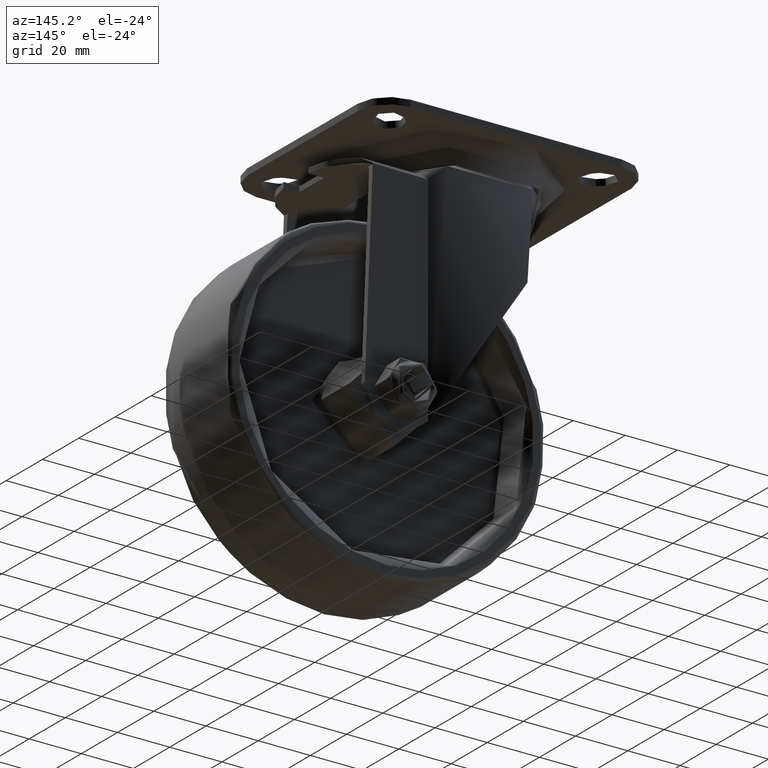
[diagram: clean part render]
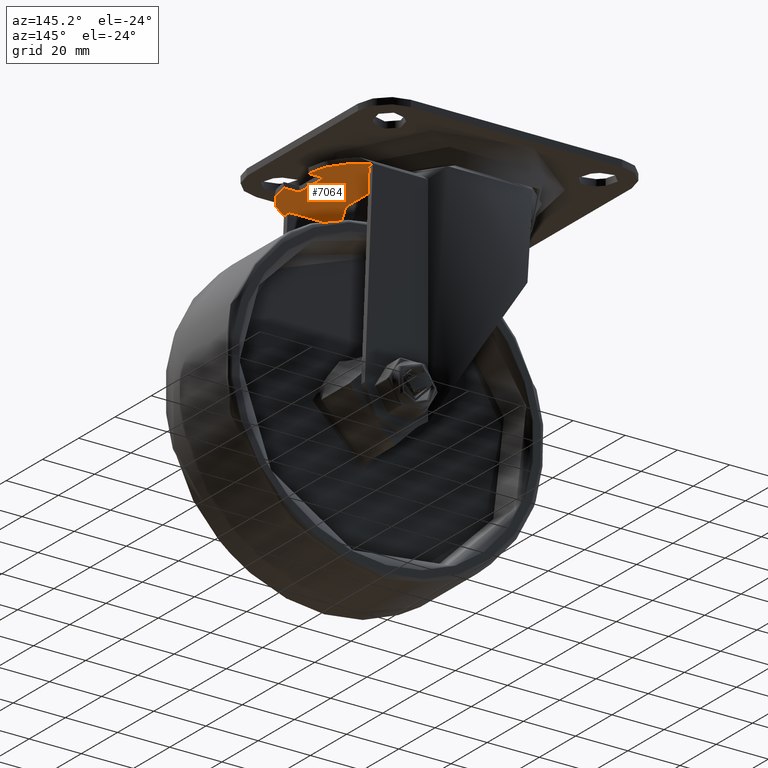
[diagram: same view with one face highlighted and labeled with its STEP entity id]
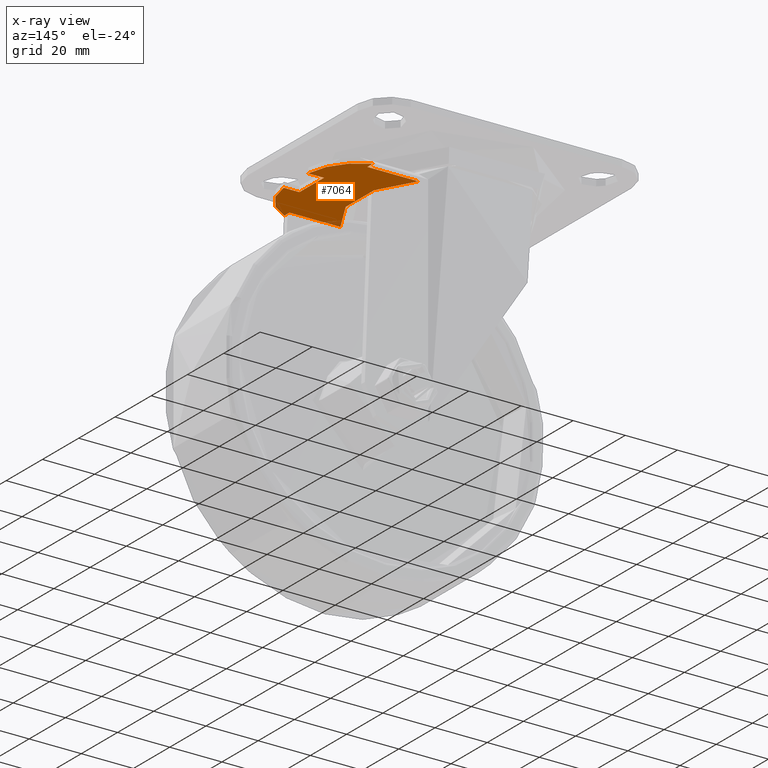
[diagram: x-ray of the same camera — body ghosted, the highlighted face saturated]
A machine part, auxiliary view. The second image highlights one B-rep face of the part: STEP entity #7064.
The next image is the same camera in x-ray: the body ghosted, the highlighted face saturated — about 1% of this face is hidden behind the body in this view.
In plain terms, the highlighted planar face has unit normal (0, 0, 1).
Its self-contained STEP definition (entity closure, byte-faithful):
#564=PLANE('',#7691);
#828=FACE_OUTER_BOUND('',#1275,.T.);
#1275=EDGE_LOOP('',(#5256,#5257,#5258,#5259,#5260,#5261,#5262,#5263,#5264,
#5265));
#1672=LINE('',#10458,#2215);
#1684=LINE('',#10523,#2227);
#1685=LINE('',#10526,#2228);
#1687=LINE('',#10529,#2230);
#1699=LINE('',#10742,#2242);
#1702=LINE('',#10842,#2245);
#1768=LINE('',#11309,#2311);
#2215=VECTOR('',#8476,10.);
#2227=VECTOR('',#8516,10.);
#2228=VECTOR('',#8519,10.);
#2230=VECTOR('',#8523,10.);
#2242=VECTOR('',#8589,1000.);
#2245=VECTOR('',#8596,1000.);
#2311=VECTOR('',#8732,10.);
#2748=CIRCLE('',#7608,20.6922235914258);
#2752=CIRCLE('',#7617,20.6922235914258);
#2767=CIRCLE('',#7643,31.5);
#3070=VERTEX_POINT('',#10455);
#3071=VERTEX_POINT('',#10457);
#3076=VERTEX_POINT('',#10469);
#3086=VERTEX_POINT('',#10515);
#3087=VERTEX_POINT('',#10517);
#3088=VERTEX_POINT('',#10521);
#3089=VERTEX_POINT('',#10525);
#3112=VERTEX_POINT('',#10725);
#3113=VERTEX_POINT('',#10727);
#3117=VERTEX_POINT('',#10793);
#3768=EDGE_CURVE('',#3070,#3071,#1672,.T.);
#3775=EDGE_CURVE('',#3070,#3076,#2748,.T.);
#3788=EDGE_CURVE('',#3087,#3086,#2752,.T.);
#3791=EDGE_CURVE('',#3076,#3088,#1684,.T.);
#3792=EDGE_CURVE('',#3089,#3087,#1685,.T.);
#3794=EDGE_CURVE('',#3088,#3089,#1687,.T.);
#3826=EDGE_CURVE('',#3112,#3113,#2767,.T.);
#3831=EDGE_CURVE('',#3071,#3112,#1699,.T.);
#3839=EDGE_CURVE('',#3113,#3117,#1702,.T.);
#3936=EDGE_CURVE('',#3117,#3086,#1768,.T.);
#5256=ORIENTED_EDGE('',*,*,#3839,.F.);
#5257=ORIENTED_EDGE('',*,*,#3826,.F.);
#5258=ORIENTED_EDGE('',*,*,#3831,.F.);
#5259=ORIENTED_EDGE('',*,*,#3768,.F.);
#5260=ORIENTED_EDGE('',*,*,#3775,.T.);
#5261=ORIENTED_EDGE('',*,*,#3791,.T.);
#5262=ORIENTED_EDGE('',*,*,#3794,.T.);
#5263=ORIENTED_EDGE('',*,*,#3792,.T.);
#5264=ORIENTED_EDGE('',*,*,#3788,.T.);
#5265=ORIENTED_EDGE('',*,*,#3936,.F.);
#7064=ADVANCED_FACE('',(#828),#564,.F.);
#7608=AXIS2_PLACEMENT_3D('',#10471,#8487,#8488);
#7617=AXIS2_PLACEMENT_3D('',#10518,#8510,#8511);
#7643=AXIS2_PLACEMENT_3D('',#10728,#8578,#8579);
#7691=AXIS2_PLACEMENT_3D('',#11844,#8745,#8746);
#8476=DIRECTION('',(0.,-1.,0.));
#8487=DIRECTION('center_axis',(0.,0.,-1.));
#8488=DIRECTION('ref_axis',(0.998120118345828,0.0612880849212211,0.));
#8510=DIRECTION('center_axis',(0.,0.,-1.));
#8511=DIRECTION('ref_axis',(0.394028404164686,-0.919098262816023,0.));
#8516=DIRECTION('',(-1.,0.,0.));
#8519=DIRECTION('',(1.,0.,0.));
#8523=DIRECTION('',(0.,-1.,0.));
#8578=DIRECTION('center_axis',(0.,0.,-1.));
#8579=DIRECTION('ref_axis',(1.,-1.22464679914735E-16,0.));
#8589=DIRECTION('',(-1.,0.,0.));
#8596=DIRECTION('',(1.,0.,0.));
#8732=DIRECTION('',(0.,-1.,0.));
#8745=DIRECTION('center_axis',(0.,0.,1.));
#8746=DIRECTION('ref_axis',(0.,1.,0.));
#10455=CARTESIAN_POINT('',(42.58025477707,24.4653929981592,-13.5));
#10457=CARTESIAN_POINT('',(42.5802547770701,21.5,-13.5));
#10458=CARTESIAN_POINT('',(42.58025477707,6.66133814775094E-15,-13.5));
#10469=CARTESIAN_POINT('',(55.0000008195639,6.75000000000001,-13.5));
#10471=CARTESIAN_POINT('Origin',(34.3466761596516,5.4818132433198,-13.5));
#10515=CARTESIAN_POINT('',(42.58025477707,-24.4653929981592,-13.5));
#10517=CARTESIAN_POINT('',(55.0000008195639,-6.75,-13.5));
#10518=CARTESIAN_POINT('Origin',(34.3466761596516,-5.48181324331979,-13.5));
#10521=CARTESIAN_POINT('',(49.,6.75000000000001,-13.5));
#10523=CARTESIAN_POINT('',(49.,6.75000000000001,-13.5));
#10525=CARTESIAN_POINT('',(49.,-6.75,-13.5));
#10526=CARTESIAN_POINT('',(49.,-6.75,-13.5));
#10529=CARTESIAN_POINT('',(49.,3.9801020972289E-15,-13.5));
#10725=CARTESIAN_POINT('',(23.0217288664427,21.5,-13.5));
#10727=CARTESIAN_POINT('',(23.0217288664427,-21.5,-13.5));
#10728=CARTESIAN_POINT('Origin',(-2.16840434497101E-15,-3.46944695195361E-15,
-13.5));
#10742=CARTESIAN_POINT('',(52.5,21.5,-13.5));
#10793=CARTESIAN_POINT('',(42.5802547770701,-21.5,-13.5));
#10842=CARTESIAN_POINT('',(52.5,-21.5,-13.5));
#11309=CARTESIAN_POINT('',(42.58025477707,6.66133814775094E-15,-13.5));
#11844=CARTESIAN_POINT('Origin',(52.5,0.,-13.5));